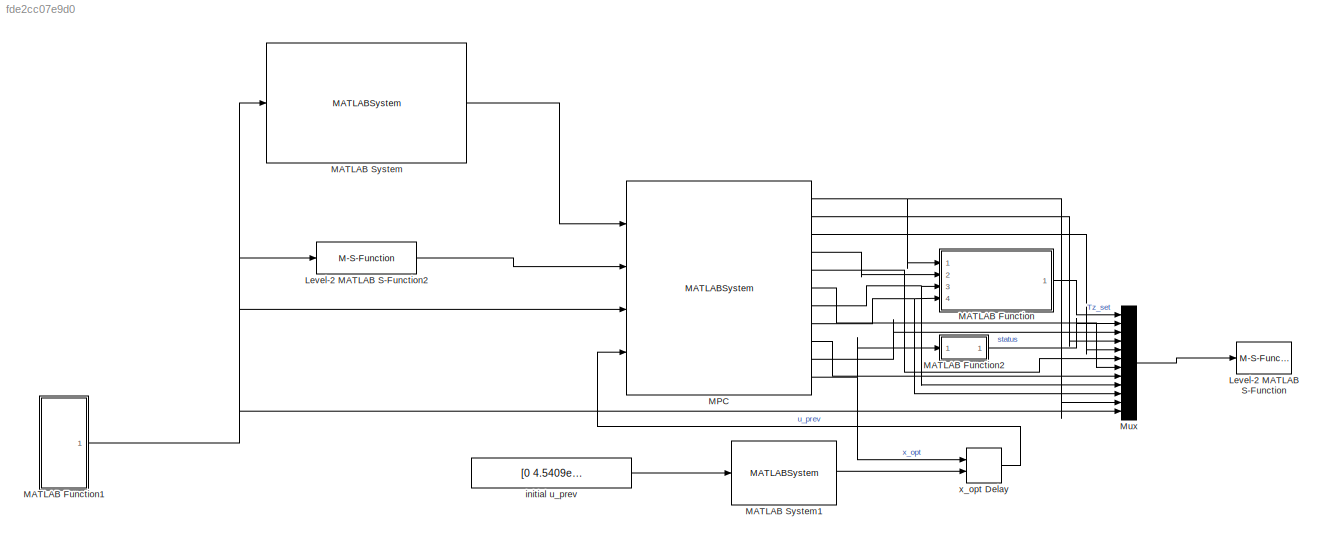
MODEL slx_fde2cc07e9d0
KIND model
CONFIG AbsTol = auto
CONFIG EnableMultiTasking = off
CONFIG FixedStep = auto
CONFIG MaxStep = auto
CONFIG MinStep = auto
CONFIG RelTol = 1e-3
CONFIG SampleTimeConstraint = Unconstrained
CONFIG Solver = VariableStepAuto
CONFIG SolverName = VariableStepAuto
CONFIG StartTime = 0.0
CONFIG StopTime = 1801
BLOCK [M-S-Function] Level-2 MATLAB S-Function
  FunctionName = DBwrite_GEB
  Ports = [1, 1]
BLOCK [M-S-Function] Level-2 MATLAB S-Function2
  FunctionName = DBread_Meas_MPC
  Ports = [1, 1]
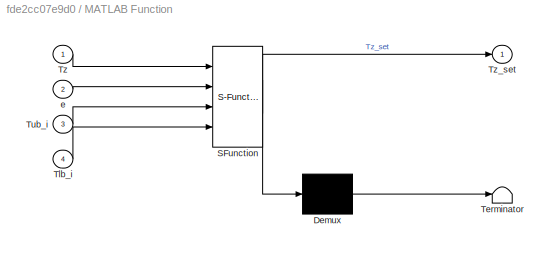
BLOCK [SubSystem] MATLAB Function
  ErrorFcn = Stateflow.Translate.translate
  PermitHierarchicalResolution = ExplicitOnly
  Ports = [4, 1]
  RequestExecContextInheritance = off
  SFBlockType = MATLAB Function
  TreatAsAtomicUnit = on
BLOCK [Demux] MATLAB Function/ Demux 
  Outputs = 1
  Ports = [1, 1]
BLOCK [S-Function] MATLAB Function/ SFunction 
  EnableBusSupport = on
  FunctionName = sf_sfun
  PortCounts = [4 2]
  Ports = [4, 2]
  SFcnIsStateOwnerBlock = off
  SFunctionDeploymentMode = off
  Tag = Stateflow S-Function 2
BLOCK [Terminator] MATLAB Function/ Terminator 
BLOCK [Inport] MATLAB Function/Tlb_i
  Port = 4
BLOCK [Inport] MATLAB Function/Tub_i
  Port = 3
BLOCK [Inport] MATLAB Function/Tz
BLOCK [Outport] MATLAB Function/Tz_set
BLOCK [Inport] MATLAB Function/e
  Port = 2
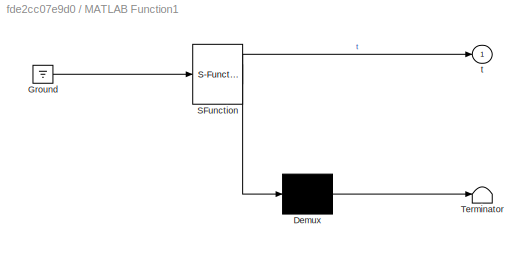
BLOCK [SubSystem] MATLAB Function1
  ErrorFcn = Stateflow.Translate.translate
  PermitHierarchicalResolution = ExplicitOnly
  Ports = [0, 1]
  RequestExecContextInheritance = off
  SFBlockType = MATLAB Function
  TreatAsAtomicUnit = on
BLOCK [Demux] MATLAB Function1/ Demux 
  Outputs = 1
  Ports = [1, 1]
BLOCK [Ground] MATLAB Function1/ Ground 
BLOCK [S-Function] MATLAB Function1/ SFunction 
  EnableBusSupport = on
  FunctionName = sf_sfun
  PortCounts = [1 2]
  Ports = [1, 2]
  SFcnIsStateOwnerBlock = off
  SFunctionDeploymentMode = off
  Tag = Stateflow S-Function 7
BLOCK [Terminator] MATLAB Function1/ Terminator 
BLOCK [Outport] MATLAB Function1/t
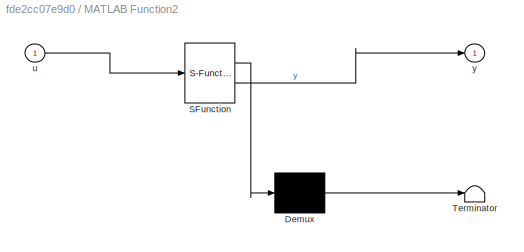
BLOCK [SubSystem] MATLAB Function2
  ErrorFcn = Stateflow.Translate.translate
  PermitHierarchicalResolution = ExplicitOnly
  Ports = [1, 1]
  RequestExecContextInheritance = off
  SFBlockType = MATLAB Function
  TreatAsAtomicUnit = on
BLOCK [Demux] MATLAB Function2/ Demux 
  Outputs = 1
  Ports = [1, 1]
BLOCK [S-Function] MATLAB Function2/ SFunction 
  EnableBusSupport = on
  FunctionName = sf_sfun
  PortCounts = [1 2]
  Ports = [1, 2]
  SFcnIsStateOwnerBlock = off
  SFunctionDeploymentMode = off
  Tag = Stateflow S-Function 1
BLOCK [Terminator] MATLAB Function2/ Terminator 
BLOCK [Inport] MATLAB Function2/u
BLOCK [Outport] MATLAB Function2/y
BLOCK [MATLABSystem] MATLAB System
  MaskDisplay = disp('Forecast_Block');\nport_label('input',1,'time');\nport_label('output',1,'predictors');
  MaskType = Forecast_Block
  PH = 16
  Ports = [1, 1]
  SimulateUsing = Interpreted execution
  System = Forecast_Block
  dt = 900
BLOCK [MATLABSystem] MATLAB System1
  MaskDisplay = disp('repmat_func');\nport_label('input',1,'u');\nport_label('output',1,'y');
  MaskType = repmat_func
  PH = 16
  Ports = [1, 1]
  SimulateUsing = Interpreted execution
  System = repmat_func
BLOCK [MATLABSystem] MPC
  CH = 1
  MaskDisplay = disp('WSHP_MPC');\nport_label('input',1,'predictors');\nport_label('input',2,'state');\nport_label('input',3,'time');\nport_label('input',4,'u_prev');\nport_label('output',1,'Tz_opt');\nport_label('output',2,'T2_opt');\nport_label('output',3,'y_opt');\nport_label('output',4,'e_opt');\nport_label('output',5,'q_opt');\nport_label('output',6,'p_opt');\nport_label('output',7,'Tub_i');\nport_label('output',8,'Tlb_...<+103ch>
  MaskType = WSHP_MPC
  PH = 16
  Ports = [4, 11]
  SimulateUsing = Interpreted execution
  System = WSHP_MPC
  Tb = 17.8
  Tz_lb_occ = 20
  Tz_lb_unocc = 12
  Tz_ub_occ = 26.3889
  Tz_ub_unocc = 30
  dep = 112.8
  dt = 900
  occ_end = 22
  occ_start = 6
  price_tou = [0.00746     0.00746     0.00746     0.00746     0.00746     0.00746     0.00746     0.00746     0.00746     0.00746     0.00746     0.00746     0.00746     0.01692     0.01692     0.01692     0.01692     0.01692     0.00746     0.00746     0.00746     0.00746     0.00746     0.00746]
  t_start = 237*24*3600
  u_lb = [0  0  0  0]
  u_ub = [1          0.1           20            5]
  w = [1  1000     0]
BLOCK [Mux] Mux
  DisplayOption = bar
  Inputs = 12
  Ports = [12, 1]
BLOCK [Constant] initial u_prev
  Value = [0  4.5409e-09           0     0.12829]
  VectorParams1D = off
BLOCK [Delay] x_opt Delay
  DelayLength = 1
  InitialConditionSource = Input port
  InputPortMap = u0,p4
  Ports = [2, 1]
  SampleTime = 900
LINE Level-2 MATLAB S-Function2:1 -> MPC:2
NET MATLAB Function1:1 -> Level-2 MATLAB S-Function2:1, MATLAB System:1, MPC:3, Mux:12
LINE MATLAB Function2:1 -> Mux:2
LINE MATLAB Function:1 -> Mux:1
LINE MATLAB System1:1 -> x_opt Delay:2
LINE MATLAB System:1 -> MPC:1
NET MPC:1 -> MATLAB Function:1, Mux:11
LINE MPC:10 -> Mux:3
NET MPC:11 -> MATLAB Function2:1, x_opt Delay:1
LINE MPC:2 -> Mux:4
LINE MPC:3 -> Mux:5
LINE MPC:4 -> MATLAB Function:2
LINE MPC:5 -> Mux:6
LINE MPC:6 -> Mux:7
NET MPC:7 -> MATLAB Function:3, Mux:9
NET MPC:8 -> MATLAB Function:4, Mux:10
LINE MPC:9 -> Mux:8
LINE Mux:1 -> Level-2 MATLAB S-Function:1
LINE initial u_prev:1 -> MATLAB System1:1
LINE x_opt Delay:1 -> MPC:4
note: NET lines group one-source signal fan-out (src -> all destinations, sorted); 1:1 wires keep LINE
CHART MATLAB Function2 states=1 transitions=1
  STATE_LABEL 'eML_blk_kernel()'
  STATE_LABEL 'SCRIPT:\nfunction y = fcn(u)\ny = u(1:4);\n'
CHART MATLAB Function states=1 transitions=1
  STATE_LABEL 'eML_blk_kernel()'
  STATE_LABEL 'SCRIPT:\nfunction Tz_set = fcn(Tz,e,Tub_i,Tlb_i)\nTz_set=min(Tub_i+e,Tz);\nTz_set=max(Tz_set,Tlb_i-e);\n'
CHART MATLAB Function1 states=1 transitions=1
  STATE_LABEL 'eML_blk_kernel()'
  STATE_LABEL "SCRIPT:\nfunction t  = fcn\ncoder.extrinsic('xlsread');\nT=0;\n[T] = xlsread('Time.xlsx', 1,'B1');\nt=0;\nt=T+15*60; %237*86400+645*60;\n\n\n"
CHART  states=0 transitions=0
CHART  states=0 transitions=0
CHART  states=0 transitions=0
